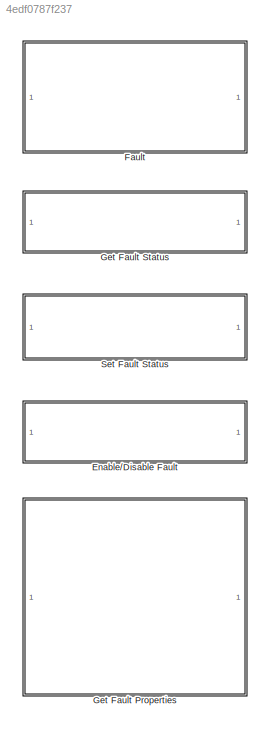
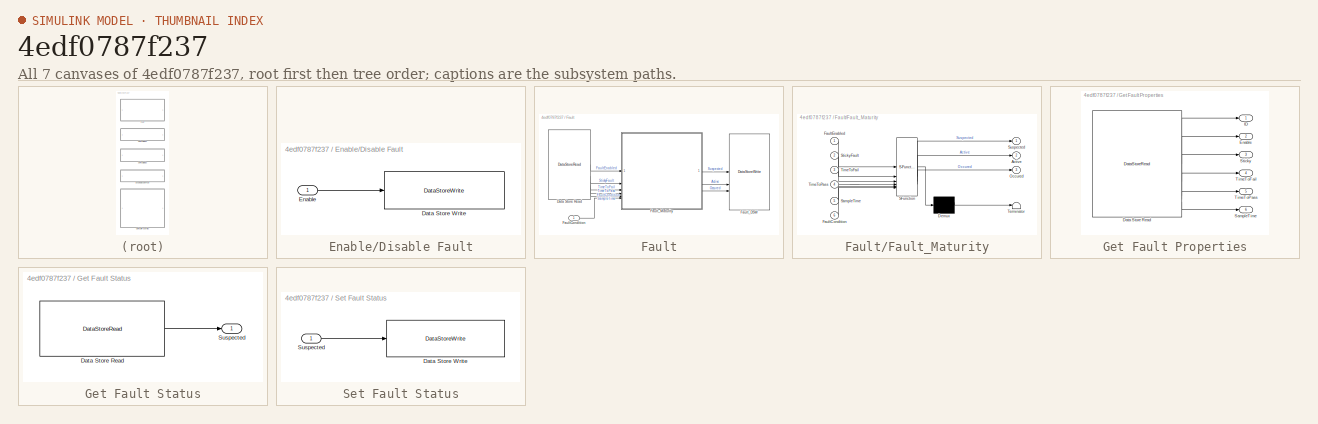
[diagram: thumbnail index - all 7 canvases of the model, root first then tree order]
MODEL slx_4edf0787f237
KIND library
CONFIG AbsTol = auto
CONFIG EnableMultiTasking = off
CONFIG FixedStep = auto
CONFIG MaxStep = auto
CONFIG MinStep = auto
CONFIG RelTol = 1e-3
CONFIG SampleTimeConstraint = Unconstrained
CONFIG SolverName = VariableStepAuto
CONFIG StartTime = 0.0
CONFIG StopTime = 10.0
BLOCK [SubSystem] Enable//Disable Fault
  TreatAsAtomicUnit = on
BLOCK [DataStoreWrite] Enable//Disable Fault/Data Store Write
  DataStoreElements = Fault1.Enable
  DataStoreName = Fault1
  IndexOptions = Index vector (dialog)
  Indices = 1
  OutputSizes = 1
BLOCK [Inport] Enable//Disable Fault/Enable
BLOCK [SubSystem] Fault
  LibrarySourceBlock = FaultManagement_lib/Fault
BLOCK [DataStoreRead] Fault/Data Store Read
  DataStoreElements = FaultName.Enable#FaultName.Sticky#FaultName.TimeToFail#FaultName.TimeToPass#FaultName.SampleTime
  DataStoreName = FaultName
  IndexOptions = Index vector (dialog)
  Indices = 1
  OutputSizes = 1
BLOCK [Inport] Fault/FaultCondition
BLOCK [DataStoreWrite] Fault/Fault_DSW
  DataStoreElements = FaultName.Suspected#FaultName.Active#FaultName.Occured
  DataStoreName = FaultName
  IndexOptions = Starting index (dialog)
  Indices = 2
  OutputSizes = 1
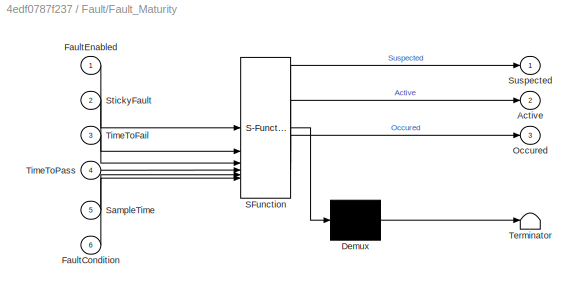
BLOCK [SubSystem] Fault/Fault_Maturity
  ErrorFcn = Stateflow.Translate.translate
  PermitHierarchicalResolution = ExplicitOnly
  RTWSystemCode = Inline
  SFBlockType = Chart
  TreatAsAtomicUnit = on
  TreatAsGroupedWhenPropagatingVariantConditions = off
BLOCK [Outport] Fault/Fault_Maturity/ Active
  Port = 2
BLOCK [Demux] Fault/Fault_Maturity/ Demux 
  Outputs = 1
BLOCK [Outport] Fault/Fault_Maturity/ Occured
  Port = 3
BLOCK [S-Function] Fault/Fault_Maturity/ SFunction 
  EnableBusSupport = off
  FunctionName = sf_sfun
  PortCounts = [6 4]
  SFcnIsStateOwnerBlock = off
  SFunctionDeploymentMode = off
  Tag = Stateflow S-Function 4
BLOCK [Outport] Fault/Fault_Maturity/ Suspected
BLOCK [Terminator] Fault/Fault_Maturity/ Terminator 
BLOCK [Inport] Fault/Fault_Maturity/FaultCondition
  Port = 6
BLOCK [Inport] Fault/Fault_Maturity/FaultEnabled
BLOCK [Inport] Fault/Fault_Maturity/SampleTime
  Port = 5
BLOCK [Inport] Fault/Fault_Maturity/StickyFault
  Port = 2
BLOCK [Inport] Fault/Fault_Maturity/TimeToFail
  Port = 3
BLOCK [Inport] Fault/Fault_Maturity/TimeToPass
  Port = 4
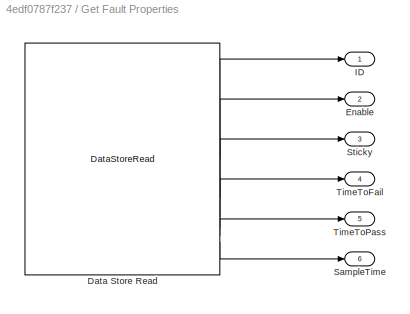
BLOCK [SubSystem] Get Fault Properties
  TreatAsAtomicUnit = on
BLOCK [DataStoreRead] Get Fault Properties/Data Store Read
  DataStoreElements = Fault1.ID#Fault1.Enable#Fault1.Sticky#Fault1.TimeToFail#Fault1.TimeToPass#Fault1.SampleTime
  DataStoreName = Fault1
  IndexOptions = Index vector (dialog)
  Indices = 1
  OutputSizes = 1
BLOCK [Outport] Get Fault Properties/Enable
  Port = 2
BLOCK [Outport] Get Fault Properties/ID
BLOCK [Outport] Get Fault Properties/SampleTime
  Port = 6
BLOCK [Outport] Get Fault Properties/Sticky
  Port = 3
BLOCK [Outport] Get Fault Properties/TimeToFail
  Port = 4
BLOCK [Outport] Get Fault Properties/TimeToPass
  Port = 5
BLOCK [SubSystem] Get Fault Status
  TreatAsAtomicUnit = on
BLOCK [DataStoreRead] Get Fault Status/Data Store Read
  DataStoreElements = Fault1.Suspected
  DataStoreName = Fault1
  IndexOptions = Index vector (dialog)
  Indices = 1
  OutputSizes = 1
BLOCK [Outport] Get Fault Status/Suspected
BLOCK [SubSystem] Set Fault Status
  TreatAsAtomicUnit = on
BLOCK [DataStoreWrite] Set Fault Status/Data Store Write
  DataStoreElements = Fault1.Suspected
  DataStoreName = Fault1
  IndexOptions = Index vector (dialog)
  Indices = 1
  OutputSizes = 1
BLOCK [Inport] Set Fault Status/Suspected
CHART Fault/Fault_Maturity states=9 transitions=11
  STATE_LABEL 'Suspected_State'
  STATE_LABEL 'NotSuspected\nif FaultEnabled\n    if Index <= single(0)\n        Test_Passed = true;\n        Test_Failed = false;\n        Index = single(0);\n    else\n        Index = max(single(0), Index - DwnCount);\n    end\nelse\n    Index = single(0);\n    Test_Passed = false;\n    Test_Failed = false;\nend'
  STATE_LABEL 'Suspected\n if Index >= single(1)\n     Test_Failed = true;\n     Test_Passed = false;\n     Index = single(1);\n else\n     Index = min(single(1), Index + UpCount);\n end'
  STATE_LABEL '{DwnCount = SampleTime/TimeToPass;\nUpCount = SampleTime/TimeToFail;}'
  STATE_LABEL '[FaultCondition && FaultEnabled]'
  STATE_LABEL '[~FaultEnabled]{Index = single(0);}'
  STATE_LABEL '[~FaultCondition]'
  STATE_LABEL 'NotSuspected\nif FaultEnabled\n    if Index <= single(0)\n        Test_Passed = true;\n        Test_Failed = false;\n        Index = single(0);\n    else\n        Index = max(single(0), Index - DwnCount);\n    end\nelse\n    Index = single(0);\n    Test_Passed = false;\n    Test_Failed = false;\nend'
  STATE_LABEL 'Suspected\n if Index >= single(1)\n     Test_Failed = true;\n     Test_Passed = false;\n     Index = single(1);\n else\n     Index = min(single(1), Index + UpCount);\n end'
  STATE_LABEL 'Active_State'
  STATE_LABEL 'Inactive'
  STATE_LABEL 'Active'
  STATE_LABEL '[Test_Failed]'
  STATE_LABEL '[~FaultEnabled]'
  STATE_LABEL '[Test_Passed && ~StickyFault]{Fault_Occured = true;}'
  STATE_LABEL 'Inactive'
  STATE_LABEL 'Active'
  STATE_LABEL 'Occured_State'
  STATE_LABEL 'NotOccured\nFault_Occured = false;'
  STATE_LABEL 'Occured'
  STATE_LABEL '[Fault_Occured]'
  STATE_LABEL '[~FaultEnabled]'
  STATE_LABEL 'NotOccured\nFault_Occured = false;'
  STATE_LABEL 'Occured'
CHART  states=0 transitions=0
